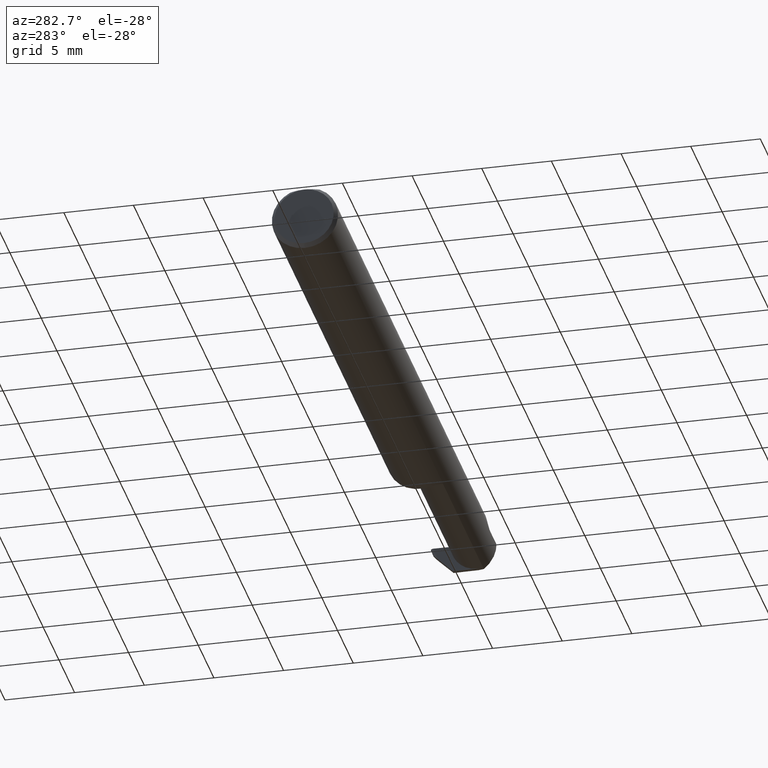
[diagram: clean part render]
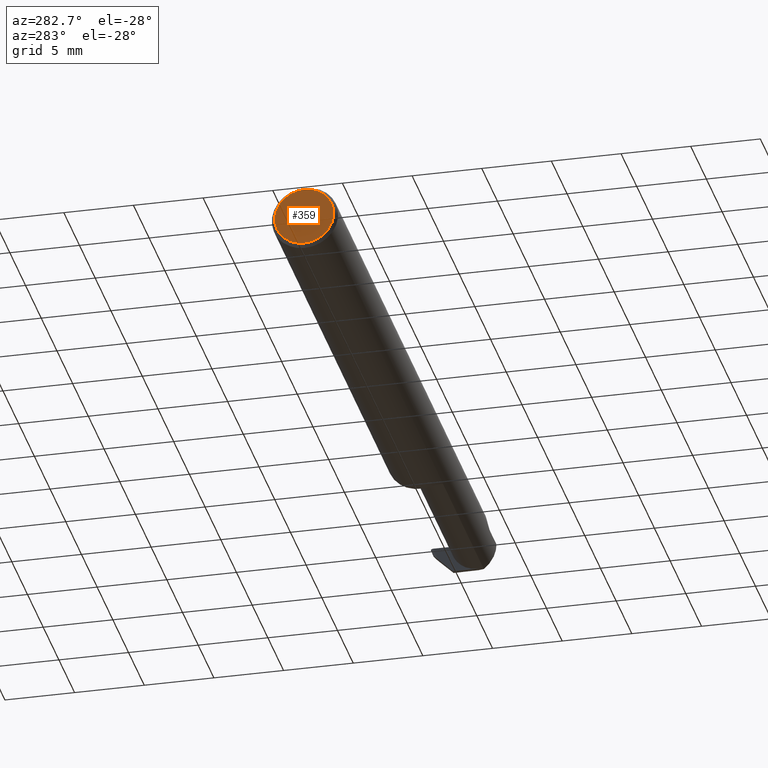
[diagram: same view with one face highlighted and labeled with its STEP entity id]
A machine part, auxiliary view. The second image highlights one B-rep face of the part: STEP entity #359.
In plain terms, the highlighted planar face has unit normal (1, 0, 0).
Its self-contained STEP definition (entity closure, byte-faithful):
#29 = DIRECTION ( 'NONE',  ( 0.000000000000000000, 0.000000000000000000, -1.000000000000000000 ) ) ;
#32 = AXIS2_PLACEMENT_3D ( 'NONE', #140, #518, #296 ) ;
#64 = CARTESIAN_POINT ( 'NONE',  ( 0.000000000000000000, 0.000000000000000000, 0.08359999999999991049 ) ) ;
#65 = CIRCLE ( 'NONE', #32, 0.08359999999999989662 ) ;
#109 = AXIS2_PLACEMENT_3D ( 'NONE', #523, #404, #29 ) ;
#140 = CARTESIAN_POINT ( 'NONE',  ( 0.000000000000000000, 0.000000000000000000, 0.000000000000000000 ) ) ;
#149 = CARTESIAN_POINT ( 'NONE',  ( 0.000000000000000000, 0.000000000000000000, 0.000000000000000000 ) ) ;
#164 = PLANE ( 'NONE',  #305 ) ;
#175 = VERTEX_POINT ( 'NONE', #183 ) ;
#183 = CARTESIAN_POINT ( 'NONE',  ( 0.000000000000000000, 0.000000000000000000, -0.08359999999999989662 ) ) ;
#204 = VERTEX_POINT ( 'NONE', #64 ) ;
#265 = ORIENTED_EDGE ( 'NONE', *, *, #283, .T. ) ;
#283 = EDGE_CURVE ( 'NONE', #175, #204, #65, .T. ) ;
#296 = DIRECTION ( 'NONE',  ( 0.000000000000000000, 0.000000000000000000, -1.000000000000000000 ) ) ;
#305 = AXIS2_PLACEMENT_3D ( 'NONE', #149, #373, #428 ) ;
#359 = ADVANCED_FACE ( 'NONE', ( #486 ), #164, .F. ) ;
#373 = DIRECTION ( 'NONE',  ( 1.000000000000000000, 0.000000000000000000, 0.000000000000000000 ) ) ;
#404 = DIRECTION ( 'NONE',  ( -1.000000000000000000, -0.000000000000000000, -0.000000000000000000 ) ) ;
#409 = EDGE_LOOP ( 'NONE', ( #655, #265 ) ) ;
#428 = DIRECTION ( 'NONE',  ( 0.000000000000000000, 0.000000000000000000, -1.000000000000000000 ) ) ;
#486 = FACE_OUTER_BOUND ( 'NONE', #409, .T. ) ;
#518 = DIRECTION ( 'NONE',  ( -1.000000000000000000, -0.000000000000000000, -0.000000000000000000 ) ) ;
#523 = CARTESIAN_POINT ( 'NONE',  ( 0.000000000000000000, 0.000000000000000000, 0.000000000000000000 ) ) ;
#575 = CIRCLE ( 'NONE', #109, 0.08359999999999989662 ) ;
#624 = EDGE_CURVE ( 'NONE', #204, #175, #575, .T. ) ;
#655 = ORIENTED_EDGE ( 'NONE', *, *, #624, .T. ) ;